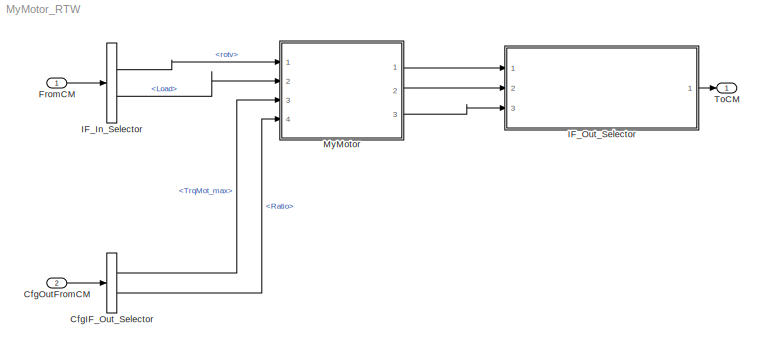
MODEL MyMotor_RTW
KIND model
CONFIG InitFcn = vehicle = 'Car'; if ~length(which('cmcmd')), cmenv; end\nMyMotor_RTW_bus
CONFIG PreLoadFcn = vehicle = 'Car'; if ~length(which('cmcmd')), cmenv; end\nMyMotor_RTW_bus
BLOCK [BusSelector] CfgIF_Out_Selector
  OutputSignals = TrqMot_max,Ratio
  Ports = [1, 2]
  SID = 9
BLOCK [Inport] CfgOutFromCM
  IconDisplay = Port number
  OutDataTypeStr = Bus: cmPTMotorCfgOut
  Port = 2
  SID = 8
BLOCK [Inport] FromCM
  IconDisplay = Port number
  OutDataTypeStr = Bus: cmPTMotorIn
  SID = 1
BLOCK [BusSelector] IF_In_Selector
  OutputSignals = rotv,Load
  Ports = [1, 2]
  SID = 2
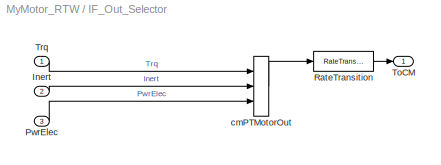
BLOCK [SubSystem] IF_Out_Selector
  OpenFcn = cmSignalSelect('SignalSelection_CB',gcb)
  Ports = [3, 1]
  RequestExecContextInheritance = off
  SID = 5
  UserData = DataTag0
  UserDataPersistent = on
  Variant = off
BLOCK [Inport] IF_Out_Selector/Inert
  IconDisplay = Port number
  Port = 2
  SID = 34
BLOCK [Inport] IF_Out_Selector/PwrElec
  IconDisplay = Port number
  Port = 3
  SID = 35
BLOCK [RateTransition] IF_Out_Selector/RateTransition
  OutPortSampleTime = str2num(get_param(bdroot,'FixedStep'))
  SID = 6
BLOCK [Outport] IF_Out_Selector/ToCM
  IconDisplay = Port number
  SID = 7
BLOCK [Inport] IF_Out_Selector/Trq
  IconDisplay = Port number
  SID = 33
BLOCK [BusCreator] IF_Out_Selector/cmPTMotorOut
  InheritFromInputs = on
  Inputs = 3
  Ports = [3, 1]
  SID = 11
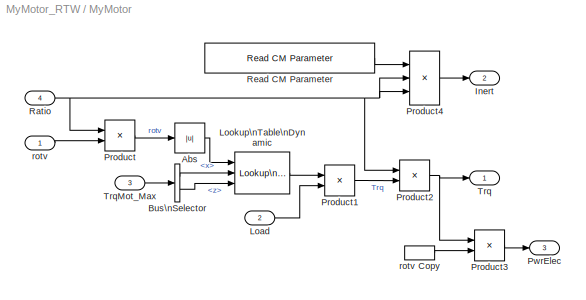
BLOCK [SubSystem] MyMotor
  Ports = [4, 3]
  RequestExecContextInheritance = off
  SID = 15
  Variant = off
BLOCK [Abs] MyMotor/Abs
  SID = 20
  SaturateOnIntegerOverflow = off
BLOCK [BusSelector] MyMotor/Bus\nSelector
  OutputSignals = x,z
  Ports = [1, 2]
  SID = 21
BLOCK [Outport] MyMotor/Inert
  IconDisplay = Port number
  Port = 2
  SID = 31
BLOCK [Inport] MyMotor/Load
  IconDisplay = Port number
  Port = 2
  SID = 17
BLOCK [Reference] MyMotor/Lookup\nTable\nDynamic  REF=simulink/Lookup\nTables/Lookup\nTable\nDynamic
  DoSatur = off
  LockScale = off
  LookUpMeth = Interpolation-Use End Values
  OutDataType = float('double')
  OutDataTypeStr = float('double')
  OutScaling = 2^-10
  OutputDataTypeScalingMode = Specify via dialog
  Ports = [3, 1]
  RndMeth = Floor
  SID = 22
  SourceBlock = simulink/Lookup\nTables/Lookup\nTable\nDynamic
  SourceType = Lookup Table Dynamic
BLOCK [Product] MyMotor/Product
  InputSameDT = off
  OutDataTypeStr = Inherit: Inherit via internal rule
  Ports = [2, 1]
  SID = 23
  SaturateOnIntegerOverflow = off
BLOCK [Product] MyMotor/Product1
  InputSameDT = off
  OutDataTypeStr = Inherit: Inherit via internal rule
  Ports = [2, 1]
  SID = 24
  SaturateOnIntegerOverflow = off
BLOCK [Product] MyMotor/Product2
  InputSameDT = off
  OutDataTypeStr = Inherit: Inherit via internal rule
  Ports = [2, 1]
  SID = 25
  SaturateOnIntegerOverflow = off
BLOCK [Product] MyMotor/Product3
  InputSameDT = off
  OutDataTypeStr = Inherit: Inherit via internal rule
  Ports = [2, 1]
  SID = 26
  SaturateOnIntegerOverflow = off
BLOCK [Product] MyMotor/Product4
  InputSameDT = off
  Inputs = 3
  OutDataTypeStr = Inherit: Inherit via internal rule
  Ports = [3, 1]
  SID = 27
  SaturateOnIntegerOverflow = off
BLOCK [Outport] MyMotor/PwrElec
  IconDisplay = Port number
  Port = 3
  SID = 32
BLOCK [Inport] MyMotor/Ratio
  IconDisplay = Port number
  Port = 4
  SID = 19
BLOCK [Reference] MyMotor/Read CM Parameter  REF=CarMaker4SL/Read CM Parameter
  Ports = [0, 1]
  SID = 28
  SourceBlock = CarMaker4SL/Read CM Parameter
  SourceType = Read CarMaker Infofile Parameter
  xdefaults = []
  xfile = Vehicle
  xkey = PowerTrain.MotorISG.I
  xmuxed = on
  xnout = 1
BLOCK [Outport] MyMotor/Trq
  IconDisplay = Port number
  SID = 30
BLOCK [Inport] MyMotor/TrqMot_Max
  IconDisplay = Port number
  Port = 3
  SID = 18
BLOCK [Inport] MyMotor/rotv
  IconDisplay = Port number
  SID = 16
BLOCK [InportShadow] MyMotor/rotv Copy
  IconDisplay = Port number
  SID = 29
BLOCK [Outport] ToCM
  IconDisplay = Port number
  OutDataTypeStr = Bus: cmPTMotorOut
  SID = 4
LINE CfgIF_Out_Selector:1 -> MyMotor:3
LINE CfgIF_Out_Selector:2 -> MyMotor:4
LINE CfgOutFromCM:1 -> CfgIF_Out_Selector:1
LINE FromCM:1 -> IF_In_Selector:1
LINE IF_In_Selector:1 -> MyMotor:1
LINE IF_In_Selector:2 -> MyMotor:2
LINE IF_Out_Selector/Inert:1 -> IF_Out_Selector/cmPTMotorOut:2
LINE IF_Out_Selector/PwrElec:1 -> IF_Out_Selector/cmPTMotorOut:3
LINE IF_Out_Selector/RateTransition:1 -> IF_Out_Selector/ToCM:1
LINE IF_Out_Selector/Trq:1 -> IF_Out_Selector/cmPTMotorOut:1
LINE IF_Out_Selector/cmPTMotorOut:1 -> IF_Out_Selector/RateTransition:1
LINE IF_Out_Selector:1 -> ToCM:1
LINE MyMotor/Abs:1 -> MyMotor/Lookup\nTable\nDynamic:1
LINE MyMotor/Bus\nSelector:1 -> MyMotor/Lookup\nTable\nDynamic:2
LINE MyMotor/Bus\nSelector:2 -> MyMotor/Lookup\nTable\nDynamic:3
LINE MyMotor/Load:1 -> MyMotor/Product1:2
LINE MyMotor/Lookup\nTable\nDynamic:1 -> MyMotor/Product1:1
LINE MyMotor/Product1:1 -> MyMotor/Product2:2
NET MyMotor/Product2:1 -> MyMotor/Product3:1, MyMotor/Trq:1
LINE MyMotor/Product3:1 -> MyMotor/PwrElec:1
LINE MyMotor/Product4:1 -> MyMotor/Inert:1
LINE MyMotor/Product:1 -> MyMotor/Abs:1
NET MyMotor/Ratio:1 -> MyMotor/Product2:1, MyMotor/Product4:2, MyMotor/Product4:3, MyMotor/Product:1
LINE MyMotor/Read CM Parameter:1 -> MyMotor/Product4:1
LINE MyMotor/TrqMot_Max:1 -> MyMotor/Bus\nSelector:1
LINE MyMotor/rotv Copy:1 -> MyMotor/Product3:2
LINE MyMotor/rotv:1 -> MyMotor/Product:2
LINE MyMotor:1 -> IF_Out_Selector:1
LINE MyMotor:2 -> IF_Out_Selector:2
LINE MyMotor:3 -> IF_Out_Selector:3
note: NET lines group one-source signal fan-out (src -> all destinations, sorted); 1:1 wires keep LINE
